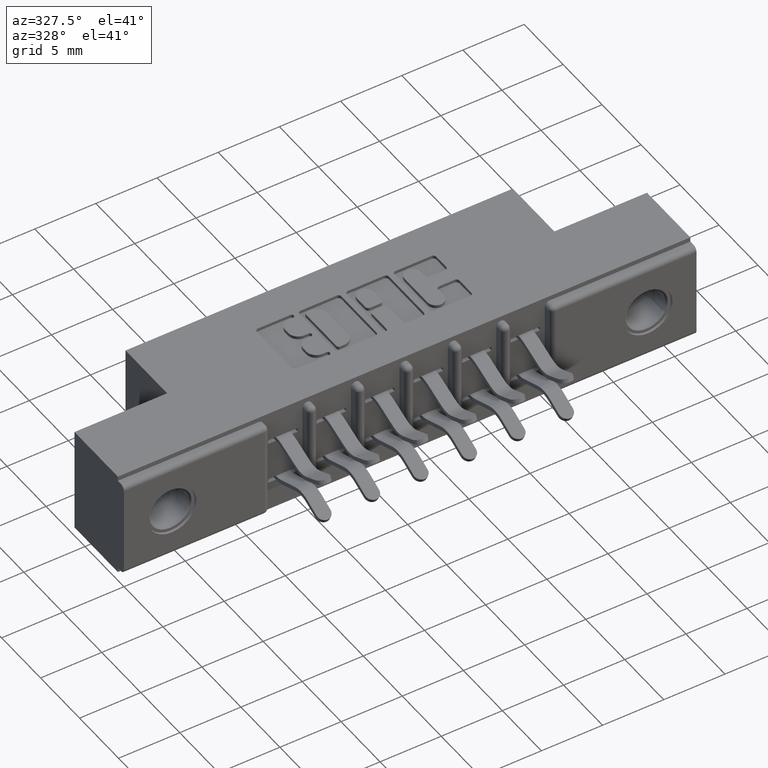
[diagram: clean part render]
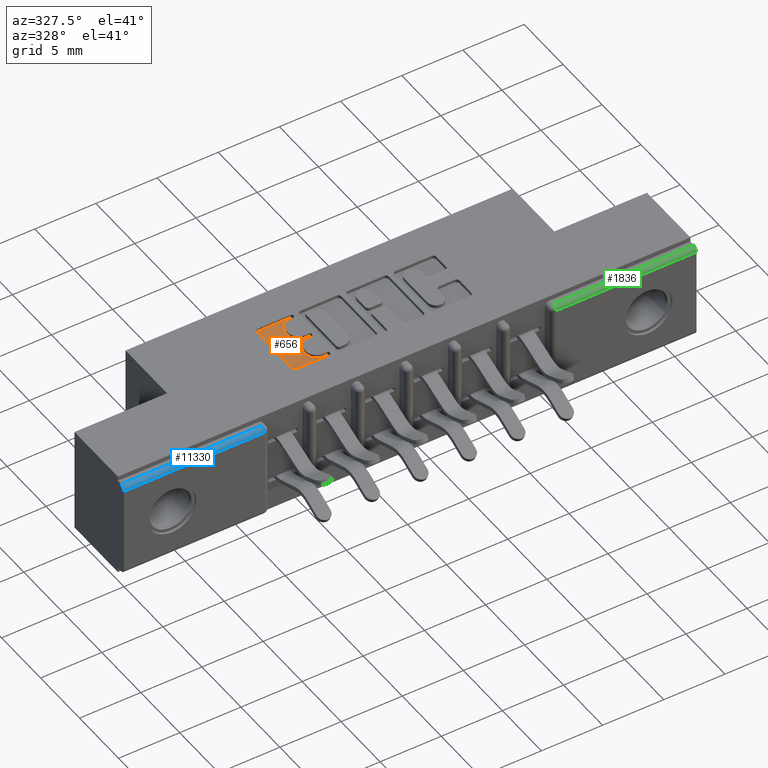
[diagram: same view with three faces highlighted in distinct colors, each labeled with its STEP entity id]
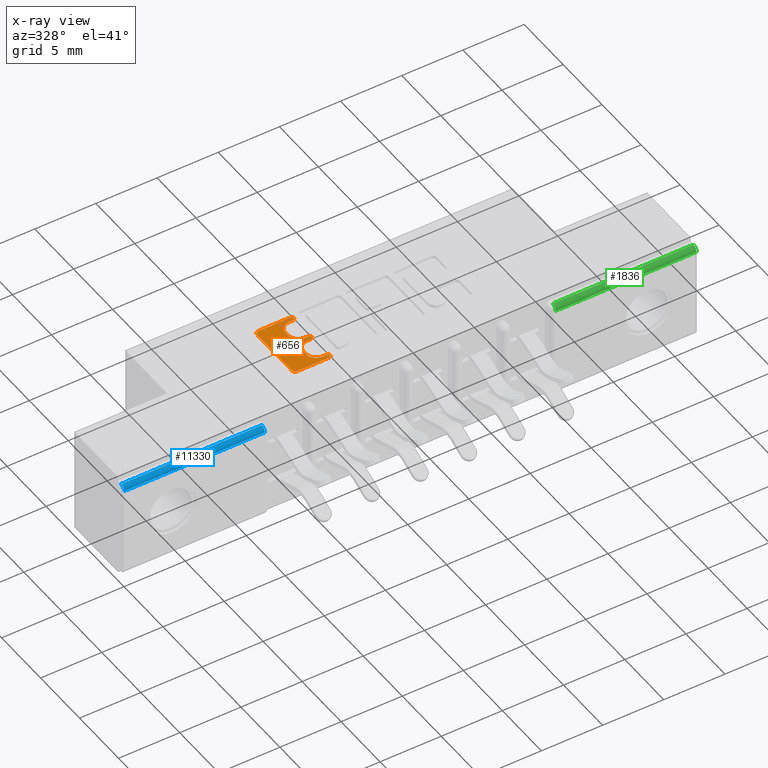
[diagram: x-ray of the same camera — body ghosted, the three highlighted faces saturated]
A machine part, auxiliary view with three faces highlighted in distinct colors.
The next image is the same camera in x-ray (body ghosted, the three faces saturated) — at least one of them is partly hidden behind the body in this view.
Their STEP definitions:

[orange] entity #656 — the highlighted planar face has unit normal (0, 0, 1).
#12 = ORIENTED_EDGE ( 'NONE', *, *, #4554, .T. ) ;
#243 = ORIENTED_EDGE ( 'NONE', *, *, #9138, .T. ) ;
#268 = LINE ( 'NONE', #1117, #9046 ) ;
#404 = AXIS2_PLACEMENT_3D ( 'NONE', #7448, #2711, #3676 ) ;
#551 = DIRECTION ( 'NONE',  ( -0.0000000000000000000, 0.0000000000000000000, 1.000000000000000000 ) ) ;
#652 = AXIS2_PLACEMENT_3D ( 'NONE', #5470, #6401, #8582 ) ;
#656 = ADVANCED_FACE ( 'NONE', ( #9808 ), #1575, .T. ) ;
#689 = CIRCLE ( 'NONE', #1781, 0.006870969142662229500 ) ;
#750 = CARTESIAN_POINT ( 'NONE',  ( 0.7092269153529280300, 0.0000000000000000000, -0.01000000000000000000 ) ) ;
#792 = ORIENTED_EDGE ( 'NONE', *, *, #5281, .T. ) ;
#840 = CARTESIAN_POINT ( 'NONE',  ( 0.7541336065353515500, 0.3367857328953891000, -0.01000000000000000000 ) ) ;
#921 = DIRECTION ( 'NONE',  ( 1.000000000000000000, 0.0000000000000000000, 0.0000000000000000000 ) ) ;
#1117 = CARTESIAN_POINT ( 'NONE',  ( 0.0000000000000000000, 0.2386290308573596500, -0.01000000000000000000 ) ) ;
#1142 = DIRECTION ( 'NONE',  ( -0.0000000000000000000, 0.0000000000000000000, 1.000000000000000000 ) ) ;
#1170 = DIRECTION ( 'NONE',  ( 1.000000000000000000, 6.876017002796124400E-015, 0.0000000000000000000 ) ) ;
#1211 = ORIENTED_EDGE ( 'NONE', *, *, #2657, .F. ) ;
#1218 = DIRECTION ( 'NONE',  ( -0.0000000000000000000, 0.0000000000000000000, 1.000000000000000000 ) ) ;
#1329 = CARTESIAN_POINT ( 'NONE',  ( 0.6498421106199383500, 0.3338410318342129300, -0.01000000000000000000 ) ) ;
#1425 = VERTEX_POINT ( 'NONE', #7937 ) ;
#1433 = VECTOR ( 'NONE', #3565, 39.37007874015748100 ) ;
#1481 = EDGE_CURVE ( 'NONE', #4621, #3512, #6816, .T. ) ;
#1536 = DIRECTION ( 'NONE',  ( 1.000000000000000000, 0.0000000000000000000, 0.0000000000000000000 ) ) ;
#1567 = EDGE_CURVE ( 'NONE', #2156, #9578, #5456, .T. ) ;
#1575 = PLANE ( 'NONE',  #7772 ) ;
#1578 = VECTOR ( 'NONE', #9079, 39.37007874015748100 ) ;
#1695 = CARTESIAN_POINT ( 'NONE',  ( 0.6400264404161156700, 0.1571589681657927500, -0.01000000000000000000 ) ) ;
#1709 = EDGE_CURVE ( 'NONE', #11806, #5504, #5160, .T. ) ;
#1729 = DIRECTION ( 'NONE',  ( 1.000000000000000000, 0.0000000000000000000, 0.0000000000000000000 ) ) ;
#1738 = ORIENTED_EDGE ( 'NONE', *, *, #2033, .T. ) ;
#1781 = AXIS2_PLACEMENT_3D ( 'NONE', #9285, #10305, #8369 ) ;
#1967 = CARTESIAN_POINT ( 'NONE',  ( 0.7092269153529097100, 0.2985046191005226200, -0.01000000000000000000 ) ) ;
#2009 = DIRECTION ( 'NONE',  ( -0.0000000000000000000, 0.0000000000000000000, 1.000000000000000000 ) ) ;
#2033 = EDGE_CURVE ( 'NONE', #5844, #7317, #7843, .T. ) ;
#2156 = VERTEX_POINT ( 'NONE', #6870 ) ;
#2206 = AXIS2_PLACEMENT_3D ( 'NONE', #1329, #3231, #9908 ) ;
#2214 = CARTESIAN_POINT ( 'NONE',  ( 0.7610045756779999500, 0.3367857328953891000, -0.01000000000000000000 ) ) ;
#2275 = EDGE_CURVE ( 'NONE', #5844, #6238, #5593, .T. ) ;
#2354 = AXIS2_PLACEMENT_3D ( 'NONE', #3972, #2009, #11533 ) ;
#2395 = CARTESIAN_POINT ( 'NONE',  ( 0.7610045756779980600, 0.1542142671046507800, -0.01000000000000000000 ) ) ;
#2524 = DIRECTION ( 'NONE',  ( -1.000000000000000000, -1.189163988687022500E-013, 0.0000000000000000000 ) ) ;
#2551 = DIRECTION ( 'NONE',  ( 0.0000000000000000000, 1.000000000000000000, -0.0000000000000000000 ) ) ;
#2657 = EDGE_CURVE ( 'NONE', #11806, #10143, #9162, .T. ) ;
#2664 = EDGE_CURVE ( 'NONE', #4621, #6238, #5009, .T. ) ;
#2693 = VERTEX_POINT ( 'NONE', #12117 ) ;
#2711 = DIRECTION ( 'NONE',  ( -0.0000000000000000000, 0.0000000000000000000, 1.000000000000000000 ) ) ;
#2737 = VECTOR ( 'NONE', #1170, 39.37007874015748100 ) ;
#2766 = EDGE_LOOP ( 'NONE', ( #4696, #1738, #792, #3831, #11175, #8914, #10134, #5102, #3362, #3563, #12, #4757, #1211, #4705, #6322, #10832, #10979, #6416, #243, #8302, #5911 ) ) ;
#2774 = VECTOR ( 'NONE', #3796, 39.37007874015748100 ) ;
#3024 = EDGE_CURVE ( 'NONE', #4424, #10701, #4700, .T. ) ;
#3134 = CARTESIAN_POINT ( 'NONE',  ( 0.7541336065353357900, 0.1542142671046507800, -0.01000000000000000000 ) ) ;
#3231 = DIRECTION ( 'NONE',  ( -0.0000000000000000000, 0.0000000000000000000, 1.000000000000000000 ) ) ;
#3362 = ORIENTED_EDGE ( 'NONE', *, *, #3024, .T. ) ;
#3369 = LINE ( 'NONE', #11329, #2774 ) ;
#3474 = CIRCLE ( 'NONE', #11441, 0.03141014465215624000 ) ;
#3512 = VERTEX_POINT ( 'NONE', #3699 ) ;
#3544 = EDGE_CURVE ( 'NONE', #10701, #8902, #689, .T. ) ;
#3563 = ORIENTED_EDGE ( 'NONE', *, *, #3544, .T. ) ;
#3565 = DIRECTION ( 'NONE',  ( 0.0000000000000000000, 1.000000000000000000, -0.0000000000000000000 ) ) ;
#3665 = DIRECTION ( 'NONE',  ( -0.0000000000000000000, 0.0000000000000000000, 1.000000000000000000 ) ) ;
#3676 = DIRECTION ( 'NONE',  ( 1.000000000000000000, 0.0000000000000000000, 0.0000000000000000000 ) ) ;
#3699 = CARTESIAN_POINT ( 'NONE',  ( 0.7406370600050843400, 0.2523709691426866400, -0.01000000000000000000 ) ) ;
#3729 = EDGE_CURVE ( 'NONE', #11137, #2693, #268, .T. ) ;
#3796 = DIRECTION ( 'NONE',  ( -1.000000000000000000, 0.0000000000000000000, 0.0000000000000000000 ) ) ;
#3831 = ORIENTED_EDGE ( 'NONE', *, *, #7705, .T. ) ;
#3958 = DIRECTION ( 'NONE',  ( 1.000000000000000000, 0.0000000000000000000, 0.0000000000000000000 ) ) ;
#3972 = CARTESIAN_POINT ( 'NONE',  ( 0.6498421106199224800, 0.1571589681657927500, -0.01000000000000000000 ) ) ;
#4115 = CARTESIAN_POINT ( 'NONE',  ( 0.7092269153529097100, 0.2837811137948611500, -0.01000000000000000000 ) ) ;
#4206 = DIRECTION ( 'NONE',  ( 1.000000000000000000, 0.0000000000000000000, 0.0000000000000000000 ) ) ;
#4344 = AXIS2_PLACEMENT_3D ( 'NONE', #10722, #1218, #7900 ) ;
#4359 = CIRCLE ( 'NONE', #6231, 0.006870969142663458500 ) ;
#4424 = VERTEX_POINT ( 'NONE', #7052 ) ;
#4554 = EDGE_CURVE ( 'NONE', #8902, #4629, #11095, .T. ) ;
#4621 = VERTEX_POINT ( 'NONE', #4115 ) ;
#4629 = VERTEX_POINT ( 'NONE', #9688 ) ;
#4696 = ORIENTED_EDGE ( 'NONE', *, *, #2275, .F. ) ;
#4700 = LINE ( 'NONE', #10440, #2737 ) ;
#4705 = ORIENTED_EDGE ( 'NONE', *, *, #1709, .T. ) ;
#4757 = ORIENTED_EDGE ( 'NONE', *, *, #7195, .T. ) ;
#4789 = DIRECTION ( 'NONE',  ( 1.000000000000000000, 0.0000000000000000000, 0.0000000000000000000 ) ) ;
#5009 = LINE ( 'NONE', #6536, #10516 ) ;
#5102 = ORIENTED_EDGE ( 'NONE', *, *, #10826, .T. ) ;
#5160 = LINE ( 'NONE', #750, #1433 ) ;
#5232 = CARTESIAN_POINT ( 'NONE',  ( 0.7406370600050843400, 0.2072188862052033700, -0.01000000000000000000 ) ) ;
#5281 = EDGE_CURVE ( 'NONE', #7317, #7828, #11219, .T. ) ;
#5414 = CARTESIAN_POINT ( 'NONE',  ( 0.7406370600050843400, 0.2386290308573596500, -0.01000000000000000000 ) ) ;
#5456 = LINE ( 'NONE', #7065, #1578 ) ;
#5470 = CARTESIAN_POINT ( 'NONE',  ( 0.7406370600051257500, 0.2985046191005226200, -0.01000000000000000000 ) ) ;
#5504 = VERTEX_POINT ( 'NONE', #11636 ) ;
#5593 = CIRCLE ( 'NONE', #652, 0.03141014465221592800 ) ;
#5844 = VERTEX_POINT ( 'NONE', #6738 ) ;
#5911 = ORIENTED_EDGE ( 'NONE', *, *, #2664, .T. ) ;
#5923 = CARTESIAN_POINT ( 'NONE',  ( 0.7541336064154146000, 0.1473432979619885300, -0.01000000000000000000 ) ) ;
#5970 = AXIS2_PLACEMENT_3D ( 'NONE', #3134, #1142, #9728 ) ;
#6231 = AXIS2_PLACEMENT_3D ( 'NONE', #8301, #3665, #6476 ) ;
#6238 = VERTEX_POINT ( 'NONE', #1967 ) ;
#6322 = ORIENTED_EDGE ( 'NONE', *, *, #11613, .F. ) ;
#6401 = DIRECTION ( 'NONE',  ( -0.0000000000000000000, 0.0000000000000000000, 1.000000000000000000 ) ) ;
#6416 = ORIENTED_EDGE ( 'NONE', *, *, #6538, .T. ) ;
#6476 = DIRECTION ( 'NONE',  ( 1.000000000000000000, 0.0000000000000000000, 0.0000000000000000000 ) ) ;
#6536 = CARTESIAN_POINT ( 'NONE',  ( 0.7092269153529097100, 0.0000000000000000000, -0.01000000000000000000 ) ) ;
#6538 = EDGE_CURVE ( 'NONE', #10692, #1425, #4359, .T. ) ;
#6570 = CIRCLE ( 'NONE', #404, 0.006870969142648433200 ) ;
#6738 = CARTESIAN_POINT ( 'NONE',  ( 0.7406370600051257500, 0.3299147637527385400, -0.01000000000000000000 ) ) ;
#6816 = CIRCLE ( 'NONE', #4344, 0.03141014465217454400 ) ;
#6869 = EDGE_CURVE ( 'NONE', #2693, #10692, #9247, .T. ) ;
#6870 = CARTESIAN_POINT ( 'NONE',  ( 0.7541336065353515500, 0.3436567020380355600, -0.01000000000000000000 ) ) ;
#7052 = CARTESIAN_POINT ( 'NONE',  ( 0.6498421106199189200, 0.1473432979619878100, -0.01000000000000000000 ) ) ;
#7065 = CARTESIAN_POINT ( 'NONE',  ( 0.0000000000000000000, 0.3436567020380355600, -0.01000000000000000000 ) ) ;
#7195 = EDGE_CURVE ( 'NONE', #4629, #10143, #8205, .T. ) ;
#7317 = VERTEX_POINT ( 'NONE', #8639 ) ;
#7368 = DIRECTION ( 'NONE',  ( -0.0000000000000000000, 0.0000000000000000000, 1.000000000000000000 ) ) ;
#7401 = AXIS2_PLACEMENT_3D ( 'NONE', #840, #7514, #921 ) ;
#7448 = CARTESIAN_POINT ( 'NONE',  ( 0.7541336065353515500, 0.3367857328953891000, -0.01000000000000000000 ) ) ;
#7514 = DIRECTION ( 'NONE',  ( -0.0000000000000000000, 0.0000000000000000000, 1.000000000000000000 ) ) ;
#7568 = EDGE_CURVE ( 'NONE', #10273, #11163, #8056, .T. ) ;
#7705 = EDGE_CURVE ( 'NONE', #7828, #2156, #6570, .T. ) ;
#7772 = AXIS2_PLACEMENT_3D ( 'NONE', #11886, #551, #1536 ) ;
#7801 = DIRECTION ( 'NONE',  ( 1.000000000000000000, 0.0000000000000000000, 0.0000000000000000000 ) ) ;
#7828 = VERTEX_POINT ( 'NONE', #2214 ) ;
#7843 = LINE ( 'NONE', #9437, #8565 ) ;
#7900 = DIRECTION ( 'NONE',  ( 1.000000000000000000, 0.0000000000000000000, 0.0000000000000000000 ) ) ;
#7937 = CARTESIAN_POINT ( 'NONE',  ( 0.7541336065353102500, 0.2523709691426866400, -0.01000000000000000000 ) ) ;
#8056 = LINE ( 'NONE', #9980, #12188 ) ;
#8077 = DIRECTION ( 'NONE',  ( -0.0000000000000000000, 0.0000000000000000000, 1.000000000000000000 ) ) ;
#8205 = LINE ( 'NONE', #10199, #9697 ) ;
#8258 = CARTESIAN_POINT ( 'NONE',  ( 0.7092269153529280300, 0.1924953808994932000, -0.01000000000000000000 ) ) ;
#8301 = CARTESIAN_POINT ( 'NONE',  ( 0.7541336065353102500, 0.2455000000000231700, -0.01000000000000000000 ) ) ;
#8302 = ORIENTED_EDGE ( 'NONE', *, *, #1481, .F. ) ;
#8316 = CARTESIAN_POINT ( 'NONE',  ( 0.7406370600051098700, 0.1924953808994932000, -0.01000000000000000000 ) ) ;
#8369 = DIRECTION ( 'NONE',  ( 1.000000000000000000, 0.0000000000000000000, 0.0000000000000000000 ) ) ;
#8565 = VECTOR ( 'NONE', #4789, 39.37007874015748100 ) ;
#8582 = DIRECTION ( 'NONE',  ( 1.000000000000000000, 0.0000000000000000000, 0.0000000000000000000 ) ) ;
#8639 = CARTESIAN_POINT ( 'NONE',  ( 0.7541336065353516600, 0.3299147637527385400, -0.01000000000000000000 ) ) ;
#8902 = VERTEX_POINT ( 'NONE', #2395 ) ;
#8914 = ORIENTED_EDGE ( 'NONE', *, *, #11677, .T. ) ;
#9046 = VECTOR ( 'NONE', #7801, 39.37007874015748100 ) ;
#9079 = DIRECTION ( 'NONE',  ( -1.000000000000000000, 0.0000000000000000000, 0.0000000000000000000 ) ) ;
#9138 = EDGE_CURVE ( 'NONE', #1425, #3512, #3369, .T. ) ;
#9162 = CIRCLE ( 'NONE', #10807, 0.03141014465218178200 ) ;
#9174 = CARTESIAN_POINT ( 'NONE',  ( 0.7610045756779737500, 0.2455000000000231700, -0.01000000000000000000 ) ) ;
#9247 = CIRCLE ( 'NONE', #9470, 0.006870969142663458500 ) ;
#9285 = CARTESIAN_POINT ( 'NONE',  ( 0.7541336065353357900, 0.1542142671046507800, -0.01000000000000000000 ) ) ;
#9301 = DIRECTION ( 'NONE',  ( 0.0000000000000000000, -1.000000000000000000, 0.0000000000000000000 ) ) ;
#9437 = CARTESIAN_POINT ( 'NONE',  ( 0.0000000000000000000, 0.3299147637527385400, -0.01000000000000000000 ) ) ;
#9470 = AXIS2_PLACEMENT_3D ( 'NONE', #11681, #9670, #3958 ) ;
#9498 = CARTESIAN_POINT ( 'NONE',  ( 0.6498421106199383500, 0.3436567020380355600, -0.01000000000000000000 ) ) ;
#9578 = VERTEX_POINT ( 'NONE', #9498 ) ;
#9670 = DIRECTION ( 'NONE',  ( -0.0000000000000000000, 0.0000000000000000000, 1.000000000000000000 ) ) ;
#9688 = CARTESIAN_POINT ( 'NONE',  ( 0.7541336064154146000, 0.1610852362473130200, -0.01000000000000000000 ) ) ;
#9697 = VECTOR ( 'NONE', #2524, 39.37007874015748100 ) ;
#9728 = DIRECTION ( 'NONE',  ( 1.000000000000000000, 0.0000000000000000000, 0.0000000000000000000 ) ) ;
#9770 = CIRCLE ( 'NONE', #2354, 0.009815670203805798900 ) ;
#9808 = FACE_OUTER_BOUND ( 'NONE', #2766, .T. ) ;
#9908 = DIRECTION ( 'NONE',  ( 1.000000000000000000, 0.0000000000000000000, 0.0000000000000000000 ) ) ;
#9980 = CARTESIAN_POINT ( 'NONE',  ( 0.6400264404161156700, 0.0000000000000000000, -0.01000000000000000000 ) ) ;
#10134 = ORIENTED_EDGE ( 'NONE', *, *, #7568, .T. ) ;
#10143 = VERTEX_POINT ( 'NONE', #11536 ) ;
#10199 = CARTESIAN_POINT ( 'NONE',  ( -1.915567620543394800E-014, 0.1610852362472233500, -0.01000000000000000000 ) ) ;
#10273 = VERTEX_POINT ( 'NONE', #10806 ) ;
#10305 = DIRECTION ( 'NONE',  ( -0.0000000000000000000, 0.0000000000000000000, 1.000000000000000000 ) ) ;
#10440 = CARTESIAN_POINT ( 'NONE',  ( -1.013135022034653000E-015, 0.1473432979619833400, -0.01000000000000000000 ) ) ;
#10516 = VECTOR ( 'NONE', #2551, 39.37007874015748100 ) ;
#10692 = VERTEX_POINT ( 'NONE', #9174 ) ;
#10701 = VERTEX_POINT ( 'NONE', #5923 ) ;
#10722 = CARTESIAN_POINT ( 'NONE',  ( 0.7406370600050843400, 0.2837811137948611500, -0.01000000000000000000 ) ) ;
#10806 = CARTESIAN_POINT ( 'NONE',  ( 0.6400264404161156700, 0.3338410318342129300, -0.01000000000000000000 ) ) ;
#10807 = AXIS2_PLACEMENT_3D ( 'NONE', #8316, #7368, #1729 ) ;
#10826 = EDGE_CURVE ( 'NONE', #11163, #4424, #9770, .T. ) ;
#10832 = ORIENTED_EDGE ( 'NONE', *, *, #3729, .T. ) ;
#10963 = CIRCLE ( 'NONE', #2206, 0.009815670203822599700 ) ;
#10979 = ORIENTED_EDGE ( 'NONE', *, *, #6869, .T. ) ;
#11095 = CIRCLE ( 'NONE', #5970, 0.006870969142662229500 ) ;
#11137 = VERTEX_POINT ( 'NONE', #5414 ) ;
#11163 = VERTEX_POINT ( 'NONE', #1695 ) ;
#11175 = ORIENTED_EDGE ( 'NONE', *, *, #1567, .T. ) ;
#11219 = CIRCLE ( 'NONE', #7401, 0.006870969142648433200 ) ;
#11329 = CARTESIAN_POINT ( 'NONE',  ( 0.0000000000000000000, 0.2523709691426866400, -0.01000000000000000000 ) ) ;
#11441 = AXIS2_PLACEMENT_3D ( 'NONE', #5232, #8077, #4206 ) ;
#11533 = DIRECTION ( 'NONE',  ( 1.000000000000000000, 0.0000000000000000000, 0.0000000000000000000 ) ) ;
#11536 = CARTESIAN_POINT ( 'NONE',  ( 0.7406370600051098700, 0.1610852362473114100, -0.01000000000000000000 ) ) ;
#11613 = EDGE_CURVE ( 'NONE', #11137, #5504, #3474, .T. ) ;
#11636 = CARTESIAN_POINT ( 'NONE',  ( 0.7092269153529280300, 0.2072188862052033700, -0.01000000000000000000 ) ) ;
#11677 = EDGE_CURVE ( 'NONE', #9578, #10273, #10963, .T. ) ;
#11681 = CARTESIAN_POINT ( 'NONE',  ( 0.7541336065353102500, 0.2455000000000231700, -0.01000000000000000000 ) ) ;
#11806 = VERTEX_POINT ( 'NONE', #8258 ) ;
#11886 = CARTESIAN_POINT ( 'NONE',  ( 0.0000000000000000000, 0.0000000000000000000, -0.01000000000000000000 ) ) ;
#12117 = CARTESIAN_POINT ( 'NONE',  ( 0.7541336064153890700, 0.2386290308573596500, -0.01000000000000000000 ) ) ;
#12188 = VECTOR ( 'NONE', #9301, 39.37007874015748100 ) ;

[blue] entity #11330 — the highlighted cylindrical surface (edge-blend (fillet) strip) has radius 0.381 mm, axis along (1, 0, 0).
#160 = ORIENTED_EDGE ( 'NONE', *, *, #9396, .T. ) ;
#213 = CIRCLE ( 'NONE', #10467, 0.01500000000000000300 ) ;
#330 = CARTESIAN_POINT ( 'NONE',  ( 0.4530000000000003500, 0.01499999999999999900, -0.01499999999999997700 ) ) ;
#919 = CARTESIAN_POINT ( 'NONE',  ( 0.4530000000000001800, 0.0000000000000000000, -0.02999999999999995400 ) ) ;
#937 = VECTOR ( 'NONE', #9753, 39.37007874015748100 ) ;
#1201 = ORIENTED_EDGE ( 'NONE', *, *, #5965, .F. ) ;
#1871 = EDGE_CURVE ( 'NONE', #2415, #8829, #4124, .T. ) ;
#2415 = VERTEX_POINT ( 'NONE', #11290 ) ;
#2699 = CARTESIAN_POINT ( 'NONE',  ( 1.842000000000000700, 0.01499999999999999900, -0.01499999999999997700 ) ) ;
#3105 = DIRECTION ( 'NONE',  ( -1.000000000000000000, 0.0000000000000000000, -0.0000000000000000000 ) ) ;
#3406 = VERTEX_POINT ( 'NONE', #919 ) ;
#4124 = LINE ( 'NONE', #2699, #11400 ) ;
#4425 = CYLINDRICAL_SURFACE ( 'NONE', #9781, 0.01500000000000000300 ) ;
#4612 = CIRCLE ( 'NONE', #7586, 0.01500000000000000300 ) ;
#4714 = CARTESIAN_POINT ( 'NONE',  ( 0.0000000000000000000, 0.01499999999999999900, -0.02999999999999995400 ) ) ;
#5094 = DIRECTION ( 'NONE',  ( -1.000000000000000000, -0.0000000000000000000, -0.0000000000000000000 ) ) ;
#5965 = EDGE_CURVE ( 'NONE', #3406, #10122, #6616, .T. ) ;
#6616 = LINE ( 'NONE', #6981, #937 ) ;
#6981 = CARTESIAN_POINT ( 'NONE',  ( 0.0000000000000000000, 0.0000000000000000000, -0.02999999999999995400 ) ) ;
#7102 = CARTESIAN_POINT ( 'NONE',  ( 0.4530000000000001800, 0.01499999999999999900, -0.02999999999999995400 ) ) ;
#7381 = FACE_OUTER_BOUND ( 'NONE', #11189, .T. ) ;
#7586 = AXIS2_PLACEMENT_3D ( 'NONE', #11632, #3105, #9782 ) ;
#7599 = DIRECTION ( 'NONE',  ( 1.000000000000000000, -0.0000000000000000000, -0.0000000000000000000 ) ) ;
#7627 = DIRECTION ( 'NONE',  ( 0.0000000000000000000, 0.0000000000000000000, -1.000000000000000000 ) ) ;
#7711 = DIRECTION ( 'NONE',  ( 1.000000000000000000, 0.0000000000000000000, 0.0000000000000000000 ) ) ;
#7783 = CARTESIAN_POINT ( 'NONE',  ( 0.0000000000000000000, 0.0000000000000000000, -0.02999999999999995400 ) ) ;
#8443 = EDGE_CURVE ( 'NONE', #10122, #2415, #4612, .T. ) ;
#8829 = VERTEX_POINT ( 'NONE', #330 ) ;
#9396 = EDGE_CURVE ( 'NONE', #3406, #8829, #213, .T. ) ;
#9684 = ORIENTED_EDGE ( 'NONE', *, *, #8443, .F. ) ;
#9753 = DIRECTION ( 'NONE',  ( -1.000000000000000000, 0.0000000000000000000, 0.0000000000000000000 ) ) ;
#9781 = AXIS2_PLACEMENT_3D ( 'NONE', #4714, #7711, #7627 ) ;
#9782 = DIRECTION ( 'NONE',  ( 0.0000000000000000000, 8.537024980200820800E-016, -1.000000000000000000 ) ) ;
#9864 = ORIENTED_EDGE ( 'NONE', *, *, #1871, .F. ) ;
#10122 = VERTEX_POINT ( 'NONE', #7783 ) ;
#10467 = AXIS2_PLACEMENT_3D ( 'NONE', #7102, #5094, #10884 ) ;
#10884 = DIRECTION ( 'NONE',  ( 0.0000000000000000000, 8.537024980200820800E-016, -1.000000000000000000 ) ) ;
#11189 = EDGE_LOOP ( 'NONE', ( #1201, #160, #9864, #9684 ) ) ;
#11290 = CARTESIAN_POINT ( 'NONE',  ( 0.0000000000000000000, 0.01499999999999999900, -0.01499999999999997700 ) ) ;
#11330 = ADVANCED_FACE ( 'NONE', ( #7381 ), #4425, .T. ) ;
#11400 = VECTOR ( 'NONE', #7599, 39.37007874015748100 ) ;
#11632 = CARTESIAN_POINT ( 'NONE',  ( 0.0000000000000000000, 0.01499999999999999900, -0.02999999999999995400 ) ) ;

[green] entity #1836 — the highlighted cylindrical surface (edge-blend (fillet) strip) has radius 0.381 mm, axis along (1, 0, 0).
#440 = VERTEX_POINT ( 'NONE', #1340 ) ;
#881 = CARTESIAN_POINT ( 'NONE',  ( 1.842000000000000700, 0.01499999999999999900, -0.02999999999999995400 ) ) ;
#1340 = CARTESIAN_POINT ( 'NONE',  ( 1.389000000000000200, 0.0000000000000000000, -0.02999999999999995400 ) ) ;
#1417 = DIRECTION ( 'NONE',  ( 1.000000000000000000, 0.0000000000000000000, 0.0000000000000000000 ) ) ;
#1532 = DIRECTION ( 'NONE',  ( 0.0000000000000000000, 0.0000000000000000000, -1.000000000000000000 ) ) ;
#1613 = ORIENTED_EDGE ( 'NONE', *, *, #6517, .F. ) ;
#1667 = CARTESIAN_POINT ( 'NONE',  ( 1.389000000000000200, 0.01499999999999999900, -0.01499999999999997700 ) ) ;
#1691 = AXIS2_PLACEMENT_3D ( 'NONE', #7634, #1787, #8541 ) ;
#1787 = DIRECTION ( 'NONE',  ( 1.000000000000000000, 0.0000000000000000000, 0.0000000000000000000 ) ) ;
#1836 = ADVANCED_FACE ( 'NONE', ( #11695 ), #9479, .T. ) ;
#1843 = EDGE_CURVE ( 'NONE', #10543, #11727, #6661, .T. ) ;
#2968 = CARTESIAN_POINT ( 'NONE',  ( 1.842000000000000700, 0.01499999999999999900, -0.01499999999999997700 ) ) ;
#3488 = EDGE_LOOP ( 'NONE', ( #11215, #6163, #1613, #5189 ) ) ;
#5189 = ORIENTED_EDGE ( 'NONE', *, *, #1843, .F. ) ;
#5237 = LINE ( 'NONE', #5340, #9571 ) ;
#5340 = CARTESIAN_POINT ( 'NONE',  ( 0.0000000000000000000, 0.0000000000000000000, -0.02999999999999995400 ) ) ;
#5665 = EDGE_CURVE ( 'NONE', #11027, #440, #11503, .T. ) ;
#6163 = ORIENTED_EDGE ( 'NONE', *, *, #5665, .T. ) ;
#6517 = EDGE_CURVE ( 'NONE', #11727, #440, #5237, .T. ) ;
#6661 = CIRCLE ( 'NONE', #10715, 0.01499999999999999900 ) ;
#7542 = LINE ( 'NONE', #11121, #7841 ) ;
#7634 = CARTESIAN_POINT ( 'NONE',  ( 0.0000000000000000000, 0.01499999999999999900, -0.02999999999999995400 ) ) ;
#7841 = VECTOR ( 'NONE', #10316, 39.37007874015748100 ) ;
#8178 = DIRECTION ( 'NONE',  ( -1.000000000000000000, 0.0000000000000000000, 0.0000000000000000000 ) ) ;
#8541 = DIRECTION ( 'NONE',  ( 0.0000000000000000000, 0.0000000000000000000, -1.000000000000000000 ) ) ;
#9479 = CYLINDRICAL_SURFACE ( 'NONE', #1691, 0.01500000000000000300 ) ;
#9571 = VECTOR ( 'NONE', #8178, 39.37007874015748100 ) ;
#10105 = CARTESIAN_POINT ( 'NONE',  ( 1.842000000000000700, 0.0000000000000000000, -0.02999999999999995400 ) ) ;
#10316 = DIRECTION ( 'NONE',  ( 1.000000000000000000, -0.0000000000000000000, -0.0000000000000000000 ) ) ;
#10543 = VERTEX_POINT ( 'NONE', #2968 ) ;
#10715 = AXIS2_PLACEMENT_3D ( 'NONE', #881, #12178, #11233 ) ;
#10953 = CARTESIAN_POINT ( 'NONE',  ( 1.389000000000000200, 0.01499999999999999900, -0.02999999999999995400 ) ) ;
#10985 = AXIS2_PLACEMENT_3D ( 'NONE', #10953, #1417, #1532 ) ;
#11027 = VERTEX_POINT ( 'NONE', #1667 ) ;
#11121 = CARTESIAN_POINT ( 'NONE',  ( 1.842000000000000700, 0.01499999999999999900, -0.01499999999999997700 ) ) ;
#11215 = ORIENTED_EDGE ( 'NONE', *, *, #11808, .F. ) ;
#11233 = DIRECTION ( 'NONE',  ( 0.0000000000000000000, 0.0000000000000000000, 1.000000000000000000 ) ) ;
#11503 = CIRCLE ( 'NONE', #10985, 0.01500000000000000300 ) ;
#11695 = FACE_OUTER_BOUND ( 'NONE', #3488, .T. ) ;
#11727 = VERTEX_POINT ( 'NONE', #10105 ) ;
#11808 = EDGE_CURVE ( 'NONE', #11027, #10543, #7542, .T. ) ;
#12178 = DIRECTION ( 'NONE',  ( 1.000000000000000000, -0.0000000000000000000, -0.0000000000000000000 ) ) ;